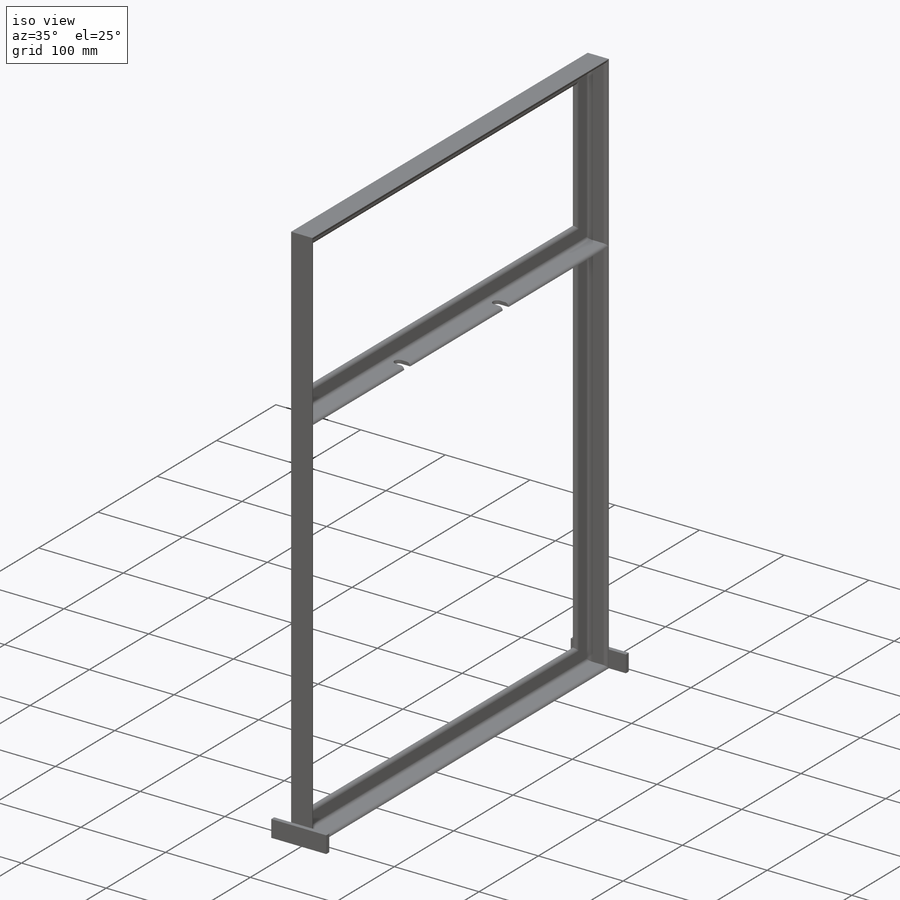
[diagram: iso view]
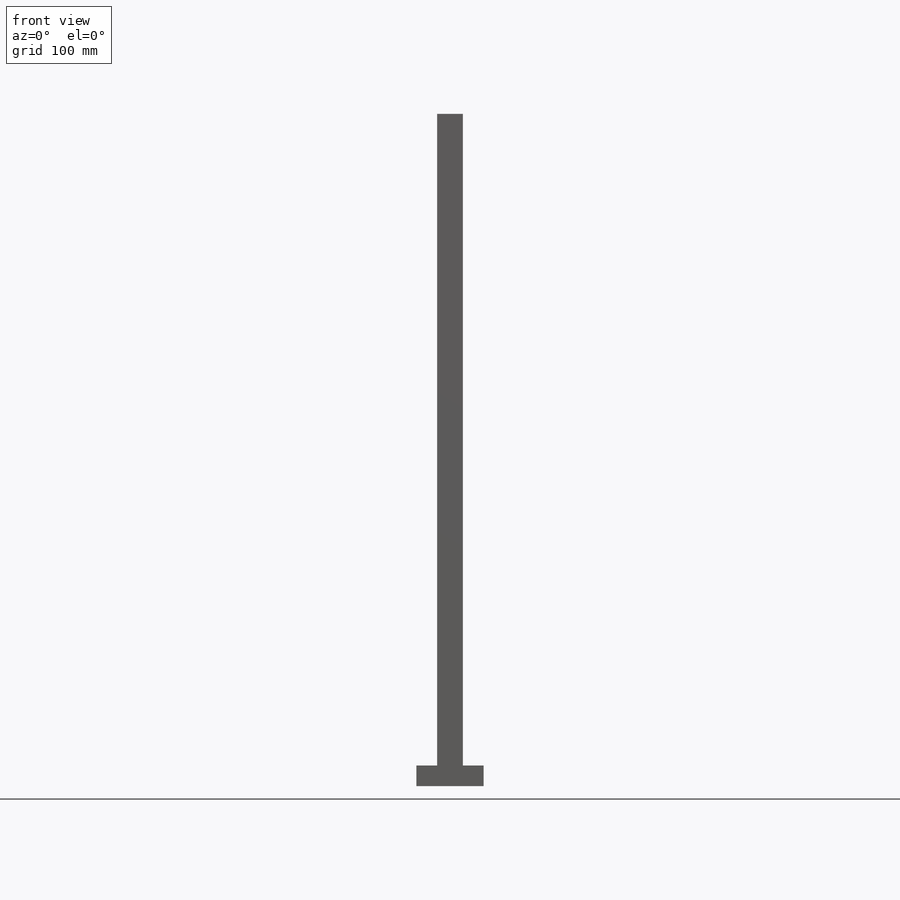
[diagram: front view]
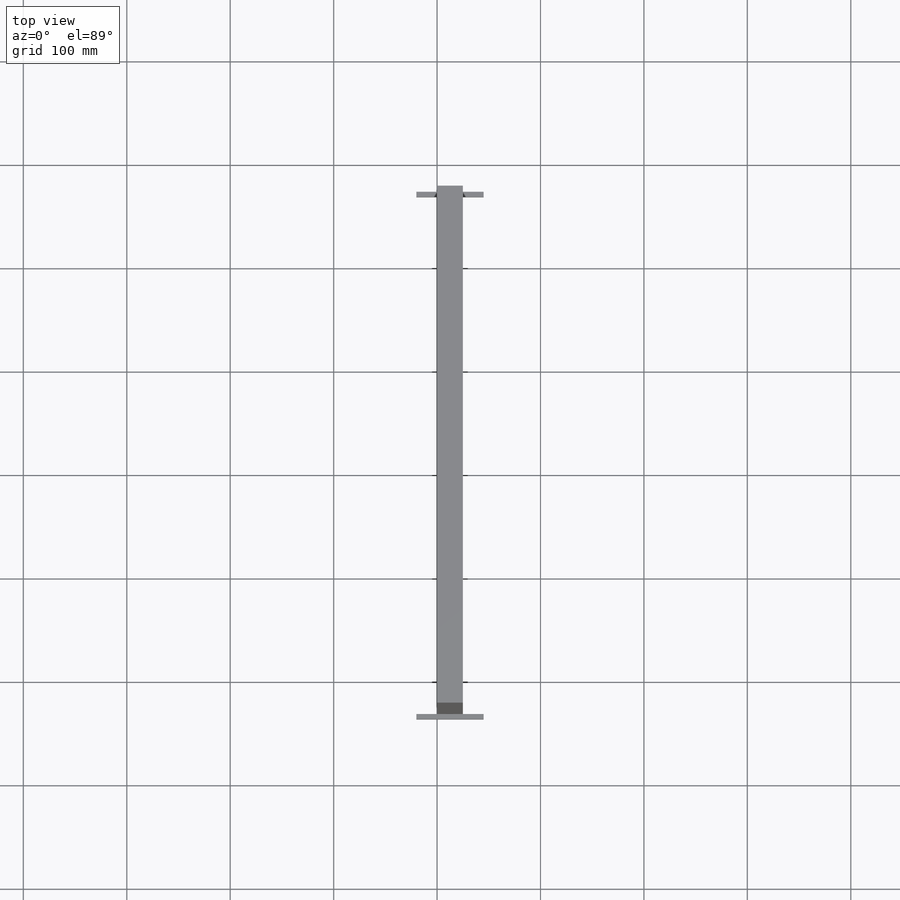
[diagram: top view]
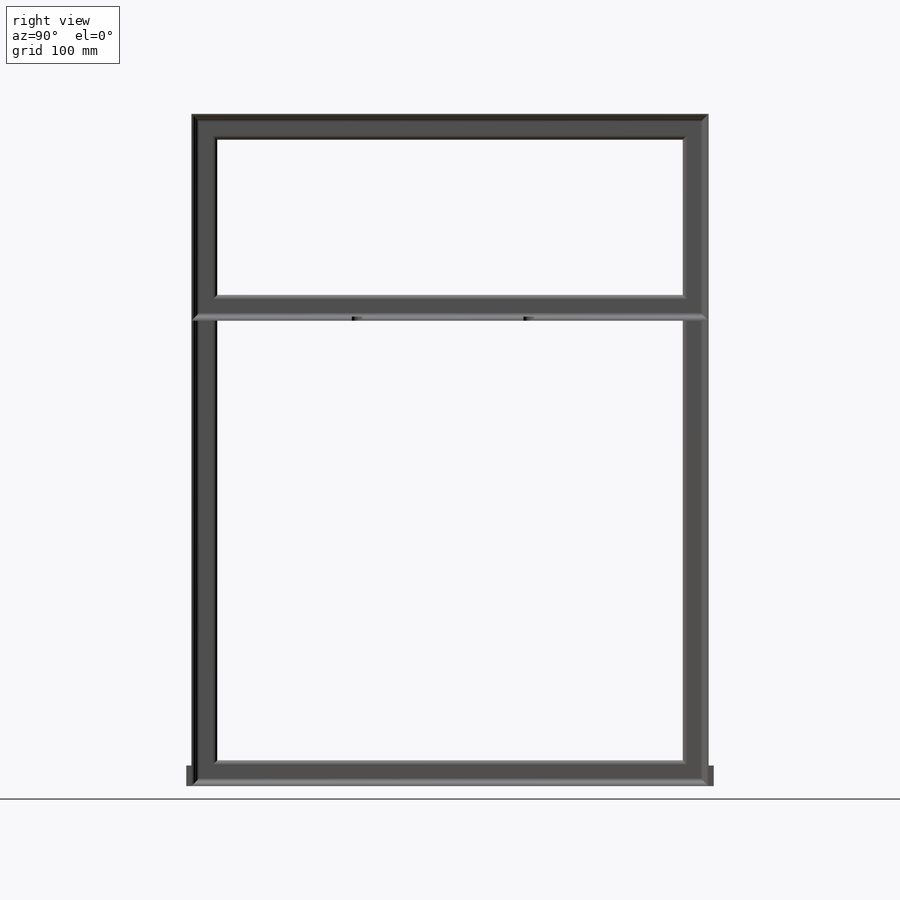
[diagram: right view]
SOLIDWORKS PART (.sldprt)
format: sldprt  version: not decoded by parser v0  size: 419,328 bytes
history: native  units: mm
features: sketch x11, plane x6, extrude x2, material x1, cut_extrude x1, pattern_linear x1 + 5 further entries (+12 scaffold rows collapsed)
feature tree (39):
  scaffold x12  (default folders/planes/origin — collapsed)
  material  "1060 Alloy"
  "Cut-List-Item5"
  "Cut-List-Item6"
  "Cut-List-Item7"
  "Cut-List-Item8"
  "Cut-List-Item9"
  sketch  "Sketch1"  dims[c1.D1=500.0mm c1.D2=700.0mm c1.D3=500.0mm c1.D4=134.2884mm c1.D5=500.0mm c2.D4=700.0mm c2.D5=~298.05218mm c2.D6=500.0mm c3.D5=200.0mm c3.D6=50.0mm]
  plane  "Plane4"
  sketch  "Sketch14"  dims[c1.D2=3.175mm c1.Radius_1=3.5mm c1.Radius_2=3.175mm c2.D2=4.0mm c2.D3=3.0mm c2.V_leg=50.8mm c2.H_leg=50.8mm c2.Thickness=3.175mm c2.D1=4.0mm c3.D3=46.0375mm c3.V_leg=25.4mm c3.H_leg=25.0mm c3.Flat_wid=~0.00508mm c4.D3=6.35mm c4.D2=0.005mm c5.D3=25.0mm]
  plane  "Plane5"
  sketch  "Sketch15"  dims[c1.D2=3.175mm c1.Radius_1=3.5mm c1.Radius_2=3.175mm c2.D2=4.0mm c2.D3=3.0mm c2.V_leg=50.8mm c2.H_leg=50.8mm c2.Thickness=3.175mm c2.D1=4.0mm c3.D3=46.0375mm c3.V_leg=25.4mm c3.H_leg=25.0mm c3.Flat_wid=~0.00508mm c4.D3=6.35mm c4.D2=0.005mm c5.D3=25.0mm]
  sketch  "Sketch23"  dims[D1=10.0mm D2=10.0mm D3=160.0mm]
  cut_extrude  "Cut-Extrude3"  Depth=5mm
  pattern_linear  "LPattern2"  Count1=2 Count2=1 Spacing1=166mm Spacing2=50mm
  sketch  "Sketch27"  dims[D1=700.0mm]
  plane  "Plane10"
  sketch  "Sketch110"  dims[c1.D2=3.175mm c1.Radius_1=3.5mm c1.Radius_2=3.175mm c2.D2=4.0mm c2.D3=3.0mm c2.V_leg=50.8mm c2.H_leg=50.8mm c2.Thickness=3.175mm c2.D1=4.0mm c3.D3=46.0375mm c3.V_leg=25.4mm c3.H_leg=25.0mm c3.Flat_wid=~0.00508mm c4.D3=6.35mm c4.D2=0.005mm c5.D3=25.0mm]
  plane  "Plane11"
  sketch  "Sketch111"  dims[c1.D2=3.175mm c1.Radius_1=3.5mm c1.Radius_2=3.175mm c2.D2=4.0mm c2.D3=3.0mm c2.V_leg=50.8mm c2.H_leg=50.8mm c2.Thickness=3.175mm c2.D1=4.0mm c3.D3=46.0375mm c3.V_leg=25.4mm c3.H_leg=25.0mm c3.Flat_wid=~0.00508mm c4.D3=6.35mm c4.D2=0.005mm c5.D3=25.0mm]
  plane  "Plane12"
  sketch  "Sketch112"  dims[c1.D2=3.175mm c1.Radius_1=3.5mm c1.Radius_2=3.175mm c2.D2=4.0mm c2.D3=3.0mm c2.V_leg=50.8mm c2.H_leg=50.8mm c2.Thickness=3.175mm c2.D1=4.0mm c3.D3=46.0375mm c3.V_leg=25.4mm c3.H_leg=25.0mm c3.Flat_wid=~0.00508mm c4.D3=6.35mm c4.D2=0.005mm c5.D3=25.0mm]
  plane  "Plane13"
  sketch  "Sketch113"  dims[c1.D2=3.175mm c1.Radius_1=3.5mm c1.Radius_2=3.175mm c2.D2=4.0mm c2.D3=3.0mm c2.V_leg=50.8mm c2.H_leg=50.8mm c2.Thickness=3.175mm c2.D1=4.0mm c3.D3=46.0375mm c3.V_leg=25.4mm c3.H_leg=25.0mm c3.Flat_wid=~0.00508mm c4.D3=6.35mm c4.D2=0.005mm c5.D3=25.0mm]
  sketch  "Sketch114"  dims[D1=20.0mm D2=65.0mm D3=20.0mm]
  extrude  "Boss-Extrude6"  Depth=5mm
  sketch  "Sketch115"  dims[D1=20.0mm D2=65.0mm D3=20.0mm]
  extrude  "Boss-Extrude7"  Depth=5mm
decode coverage: 15 of 15 modeling features carry decoded parameters; 5 rows unclassified (native names shown)
note: ~ marks probable driven/reference dimensions
note: suppression state not decoded; provenance and decode notes live in map.json
